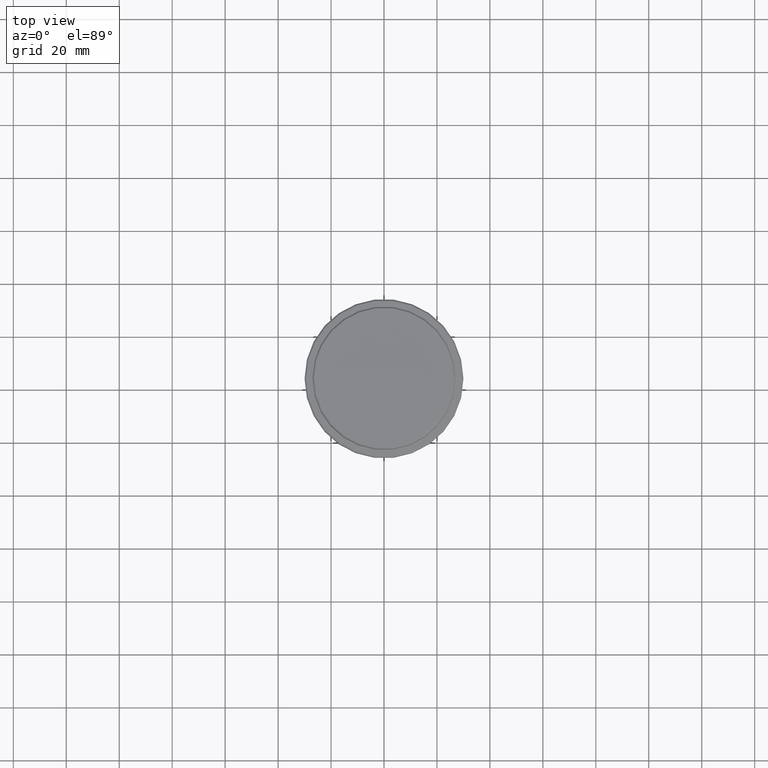
[diagram: clean part render]
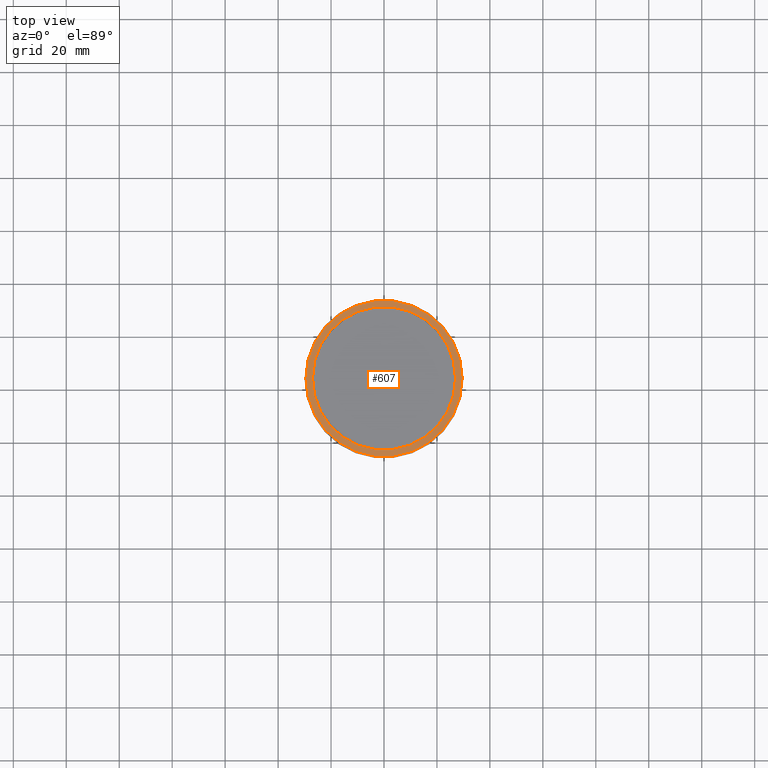
[diagram: same view with one face highlighted and labeled with its STEP entity id]
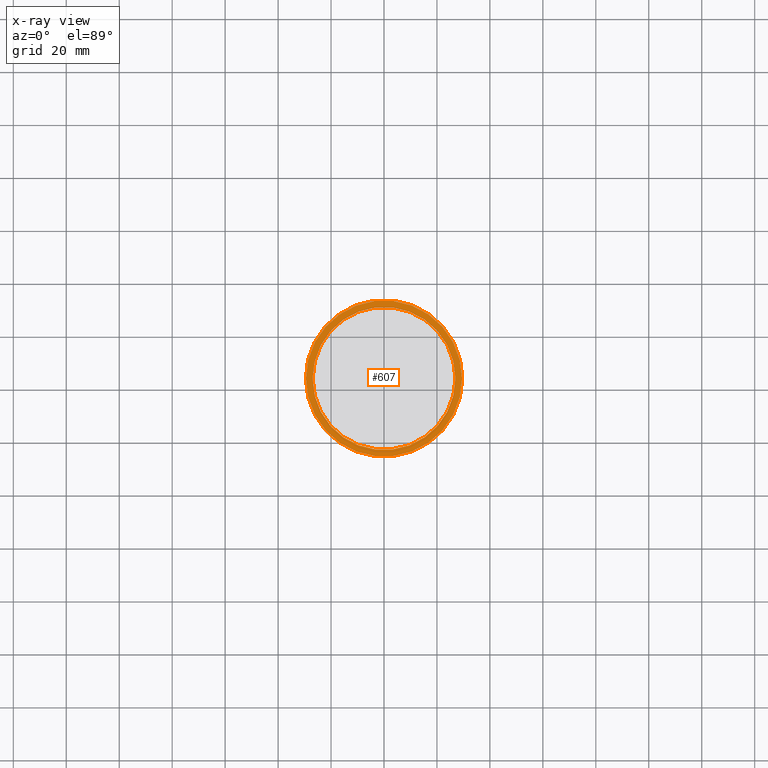
[diagram: x-ray of the same camera — body ghosted, the highlighted face saturated]
A machine part, top view. The second image highlights one B-rep face of the part: STEP entity #607.
The next image is the same camera in x-ray: the body ghosted, the highlighted face saturated — about 0% of this face is hidden behind the body in this view.
In plain terms, the highlighted planar face has unit normal (0, -0, 1).
Its self-contained STEP definition (entity closure, byte-faithful):
#15 = AXIS2_PLACEMENT_3D ( 'NONE', #641, #1161, #743 ) ;
#63 = ORIENTED_EDGE ( 'NONE', *, *, #1378, .T. ) ;
#113 = CARTESIAN_POINT ( 'NONE',  ( 0.000000000000000000, 0.000000000000000000, -12.00000000000000178 ) ) ;
#149 = CIRCLE ( 'NONE', #870, 26.99999999999999289 ) ;
#200 = DIRECTION ( 'NONE',  ( 0.000000000000000000, 0.000000000000000000, -1.000000000000000000 ) ) ;
#288 = AXIS2_PLACEMENT_3D ( 'NONE', #466, #346, #1255 ) ;
#292 = EDGE_LOOP ( 'NONE', ( #1123, #63 ) ) ;
#305 = AXIS2_PLACEMENT_3D ( 'NONE', #900, #1146, #807 ) ;
#310 = CIRCLE ( 'NONE', #1368, 26.99999999999999289 ) ;
#339 = CARTESIAN_POINT ( 'NONE',  ( 0.000000000000000000, 0.000000000000000000, -12.00000000000000178 ) ) ;
#346 = DIRECTION ( 'NONE',  ( -0.000000000000000000, -0.000000000000000000, 1.000000000000000000 ) ) ;
#456 = FACE_OUTER_BOUND ( 'NONE', #1258, .T. ) ;
#466 = CARTESIAN_POINT ( 'NONE',  ( 0.000000000000000000, 0.000000000000000000, -12.00000000000000178 ) ) ;
#484 = VERTEX_POINT ( 'NONE', #1412 ) ;
#504 = CARTESIAN_POINT ( 'NONE',  ( -29.50000000000000000, 0.000000000000000000, -12.00000000000000178 ) ) ;
#531 = ORIENTED_EDGE ( 'NONE', *, *, #1043, .T. ) ;
#549 = DIRECTION ( 'NONE',  ( 0.000000000000000000, 0.000000000000000000, -1.000000000000000000 ) ) ;
#584 = ORIENTED_EDGE ( 'NONE', *, *, #1192, .T. ) ;
#607 = ADVANCED_FACE ( 'NONE', ( #456, #1352 ), #1010, .T. ) ;
#640 = CIRCLE ( 'NONE', #15, 29.50000000000000000 ) ;
#641 = CARTESIAN_POINT ( 'NONE',  ( 0.000000000000000000, 0.000000000000000000, -12.00000000000000178 ) ) ;
#646 = DIRECTION ( 'NONE',  ( 1.000000000000000000, 0.000000000000000000, 0.000000000000000000 ) ) ;
#686 = CIRCLE ( 'NONE', #288, 29.50000000000000000 ) ;
#737 = CARTESIAN_POINT ( 'NONE',  ( 29.50000000000000000, 3.643324227463375391E-15, -12.00000000000000178 ) ) ;
#743 = DIRECTION ( 'NONE',  ( 1.000000000000000000, 0.000000000000000000, 0.000000000000000000 ) ) ;
#770 = VERTEX_POINT ( 'NONE', #504 ) ;
#784 = DIRECTION ( 'NONE',  ( 1.000000000000000000, 0.000000000000000000, 0.000000000000000000 ) ) ;
#807 = DIRECTION ( 'NONE',  ( 1.000000000000000000, 0.000000000000000000, 0.000000000000000000 ) ) ;
#870 = AXIS2_PLACEMENT_3D ( 'NONE', #339, #200, #646 ) ;
#900 = CARTESIAN_POINT ( 'NONE',  ( 0.000000000000000000, 26.49999999999999645, -12.00000000000000178 ) ) ;
#1010 = PLANE ( 'NONE',  #305 ) ;
#1043 = EDGE_CURVE ( 'NONE', #770, #1129, #686, .T. ) ;
#1123 = ORIENTED_EDGE ( 'NONE', *, *, #1334, .T. ) ;
#1126 = CARTESIAN_POINT ( 'NONE',  ( 26.99999999999999289, 0.000000000000000000, -12.00000000000000178 ) ) ;
#1129 = VERTEX_POINT ( 'NONE', #737 ) ;
#1146 = DIRECTION ( 'NONE',  ( 0.000000000000000000, -0.000000000000000000, 1.000000000000000000 ) ) ;
#1161 = DIRECTION ( 'NONE',  ( -0.000000000000000000, -0.000000000000000000, 1.000000000000000000 ) ) ;
#1192 = EDGE_CURVE ( 'NONE', #1129, #770, #640, .T. ) ;
#1255 = DIRECTION ( 'NONE',  ( 1.000000000000000000, 0.000000000000000000, 0.000000000000000000 ) ) ;
#1258 = EDGE_LOOP ( 'NONE', ( #531, #584 ) ) ;
#1334 = EDGE_CURVE ( 'NONE', #1409, #484, #310, .T. ) ;
#1352 = FACE_BOUND ( 'NONE', #292, .T. ) ;
#1368 = AXIS2_PLACEMENT_3D ( 'NONE', #113, #549, #784 ) ;
#1378 = EDGE_CURVE ( 'NONE', #484, #1409, #149, .T. ) ;
#1409 = VERTEX_POINT ( 'NONE', #1126 ) ;
#1412 = CARTESIAN_POINT ( 'NONE',  ( -26.99999999999999289, 3.306546357697852944E-15, -12.00000000000000178 ) ) ;